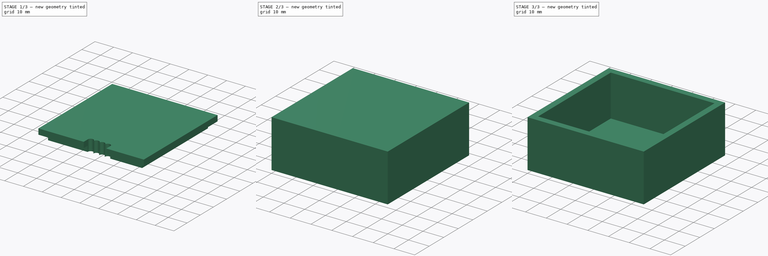
[diagram: build sequence overview — one tinted view per stage of 3, left to right]
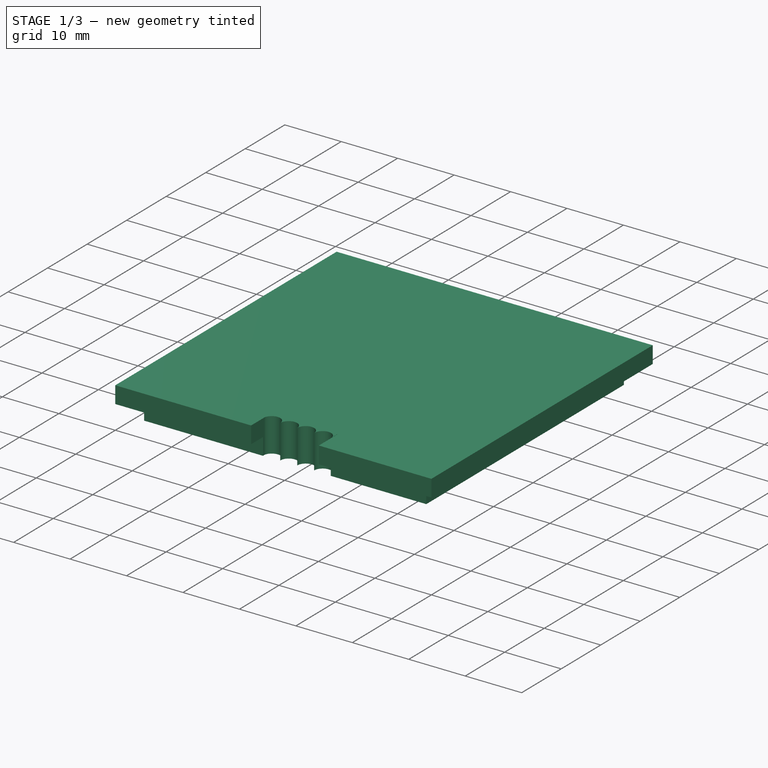
[diagram: stage 1 of 3 — iso view after this stage's code; geometry added in this stage tinted green]
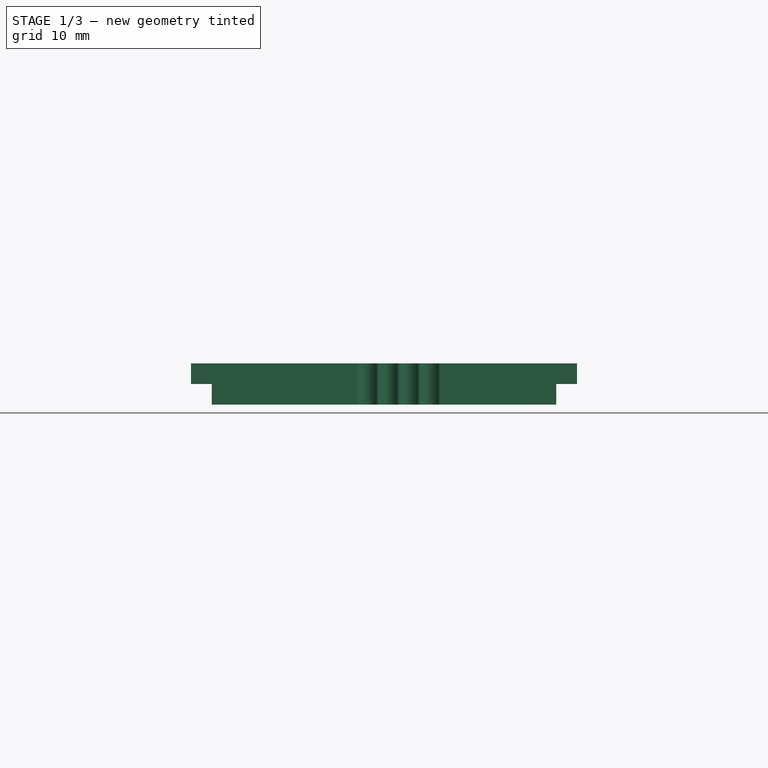
[diagram: stage 1 of 3 — front view after this stage's code; geometry added in this stage tinted green]
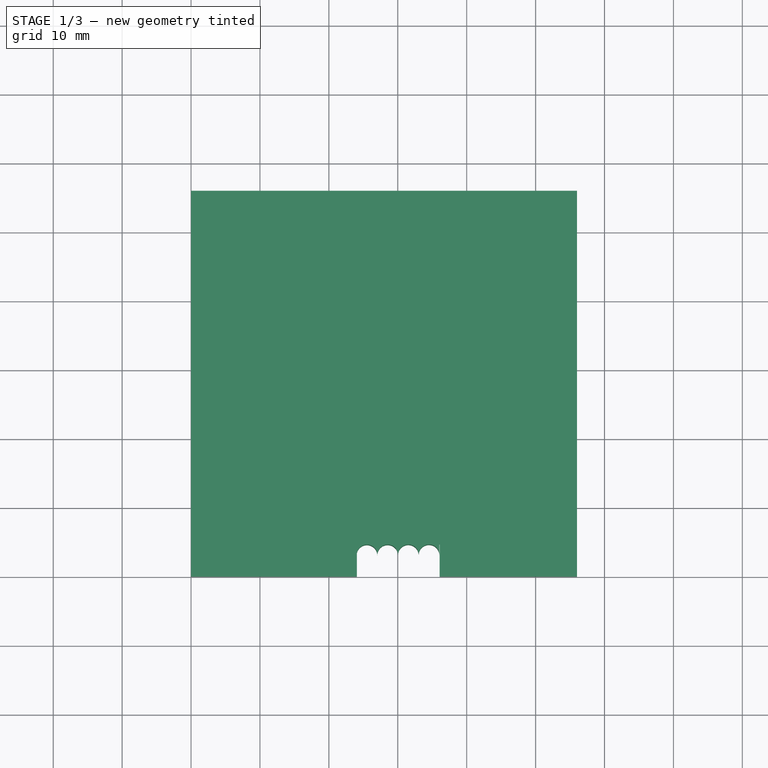
[diagram: stage 1 of 3 — top view after this stage's code; geometry added in this stage tinted green]
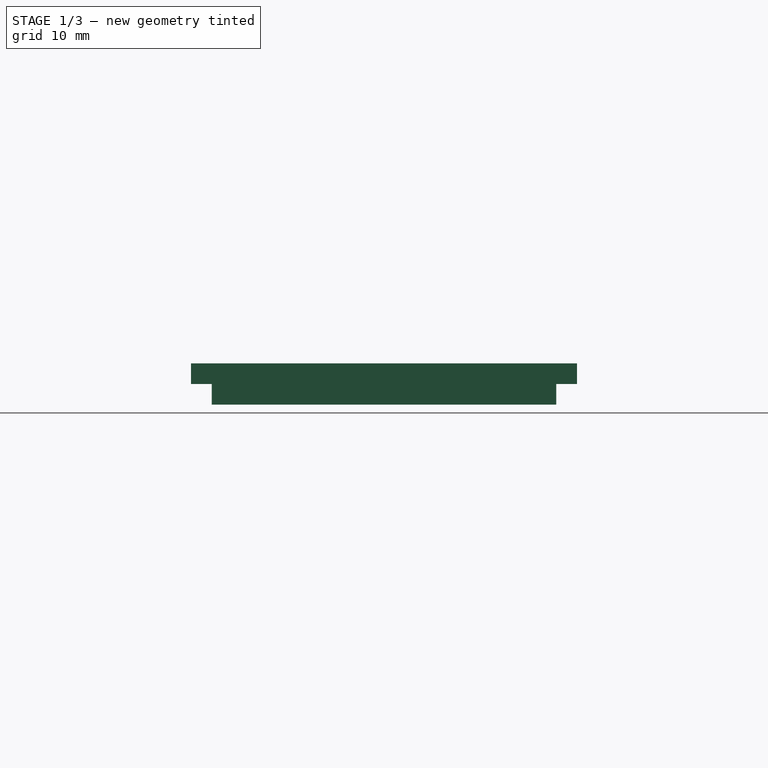
[diagram: stage 1 of 3 — right view after this stage's code; geometry added in this stage tinted green]
FCSTD DOCUMENT  (FreeCAD 0.18R13666 (Git))
Label: meteonode-box
License: All rights reserved
LicenseURL: http://en.wikipedia.org/wiki/All_rights_reserved
objects: Part::Box×4, Part::MultiFuse×3, Sketcher::SketchObject×3, Part::Extrusion×2, PartDesign::FeatureBase×1, Part::Cut×1, PartDesign::Body×1, PartDesign::Pocket×1, App::DocumentObjectGroup×1
note: 17 computed .brp shape members not serialized (recipe doc carries the construction recipe); baked Part::Feature solids carry a one-line shape summary decoded from their .brp

FEATURE [Sketcher::SketchObject] Sketch001
  sketch-geometry (7):
    g0: LineSegment StartX=24.0301 StartY=3.12567 StartZ=0 EndX=24.0301 EndY=4.81574 EndZ=0
    g1: ArcOfCircle CenterX=25.5301 CenterY=3.12745 CenterZ=0 NormalX=0 NormalY=0 NormalZ=1 AngleXU=0 Radius=1.50002 StartAngle=0.00216851 EndAngle=3.14278
    g2: LineSegment StartX=36.0301 StartY=3.15574 StartZ=0 EndX=36.0301 EndY=4.81574 EndZ=0
    g3: LineSegment StartX=36.0301 StartY=4.81574 StartZ=0 EndX=24.0301 EndY=4.81574 EndZ=0
    g4: ArcOfCircle CenterX=28.5301 CenterY=3.13516 CenterZ=0 NormalX=0 NormalY=0 NormalZ=1 AngleXU=0 Radius=1.5 StartAngle=0.00329835 EndAngle=3.14456
    g5: ArcOfCircle CenterX=31.5301 CenterY=3.14513 CenterZ=0 NormalX=0 NormalY=0 NormalZ=1 AngleXU=0 Radius=1.5 StartAngle=0.00290395 EndAngle=3.14495
    g6: ArcOfCircle CenterX=34.5301 CenterY=3.15299 CenterZ=0 NormalX=0 NormalY=0 NormalZ=1 AngleXU=0 Radius=1.5 StartAngle=0.00183633 EndAngle=3.14393
  constraints (15):
    c: Vertical(g0)
    c: Coincident(g2,g3)
    c: Horizontal(g3)
    c: Vertical(g2)
    c: Coincident(g4,g5)
    c: Coincident(g1,g4)
    c: Coincident(g5,g6)
    c: Coincident(g2,g6)
    c: Coincident(g0,g1)
    c: Coincident(g0,g3)
    c: Radius(g4) = 1.5
    c: Radius(g5) = 1.5
    c: Radius(g6) = 1.5
    c: DistanceX(g3,g3) = 12
    c: DistanceY(g2,g2) = 1.66
FEATURE [Part::Extrusion] Extrude
  Base = -> Sketch001
  Dir = (0,0,1)
  DirMode = 2
  FaceMakerClass = Part::FaceMakerBullseye
  LengthFwd = 6
  LengthRev = 0
  Placement = pos=(0,0,20) rot=(0,0,1;0rad)
  Solid = true
  Symmetric = false
FEATURE [Sketcher::SketchObject] Sketch
  MapMode = 2
  Support = -> [Body]
  sketch-geometry (4):
    g0: LineSegment StartX=24.0637 StartY=-0.055112 StartZ=0 EndX=36.0637 EndY=-0.055112 EndZ=0
    g1: LineSegment StartX=36.0637 StartY=-0.055112 StartZ=0 EndX=36.0637 EndY=4.74489 EndZ=0
    g2: LineSegment StartX=36.0637 StartY=4.74489 StartZ=0 EndX=24.0637 EndY=4.74489 EndZ=0
    g3: LineSegment StartX=24.0637 StartY=4.74489 StartZ=0 EndX=24.0637 EndY=-0.055112 EndZ=0
  constraints (10):
    c: Coincident(g0,g1)
    c: Coincident(g1,g2)
    c: Coincident(g2,g3)
    c: Coincident(g3,g0)
    c: Horizontal(g0)
    c: Horizontal(g2)
    c: Vertical(g1)
    c: Vertical(g3)
    c: DistanceX(g2,g2) = 12
    c: DistanceY(g1,g1) = 4.8
FEATURE [PartDesign::Body] Body
  BaseFeature = -> Fusion
  Group = -> [BaseFeature,Sketch,Pocket]
  Origin = -> Origin
  Tip = -> Pocket
FEATURE [PartDesign::Pocket] Pocket
  BaseFeature = -> BaseFeature
  Length = 40
  Length2 = 100
  Profile = -> Sketch
  Reversed = true
  Type = 0
FEATURE [App::DocumentObjectGroup] Group  label="GroupTapa"
  Group = -> [Fusion,Fusion001]
FEATURE [Part::MultiFuse] Fusion001  label="Fusion-Tapa-End"
  Shapes = -> [Extrude,Body]
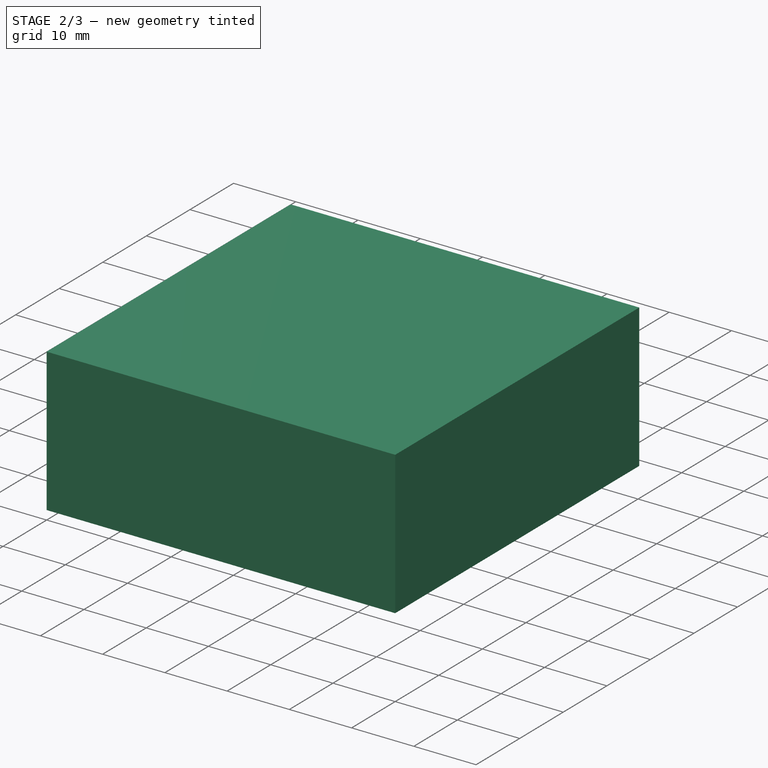
[diagram: stage 2 of 3 — iso view after this stage's code; geometry added in this stage tinted green]
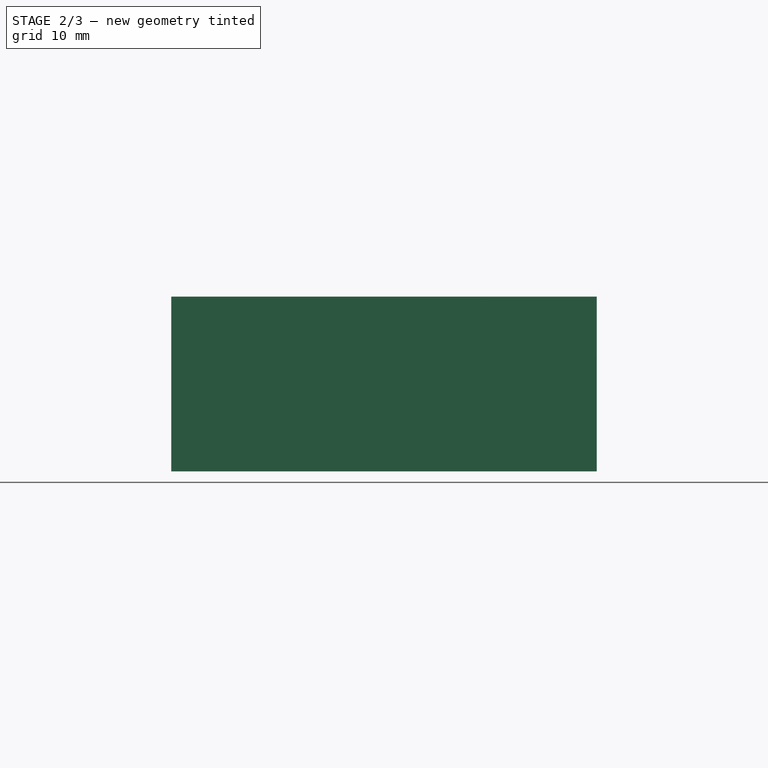
[diagram: stage 2 of 3 — front view after this stage's code; geometry added in this stage tinted green]
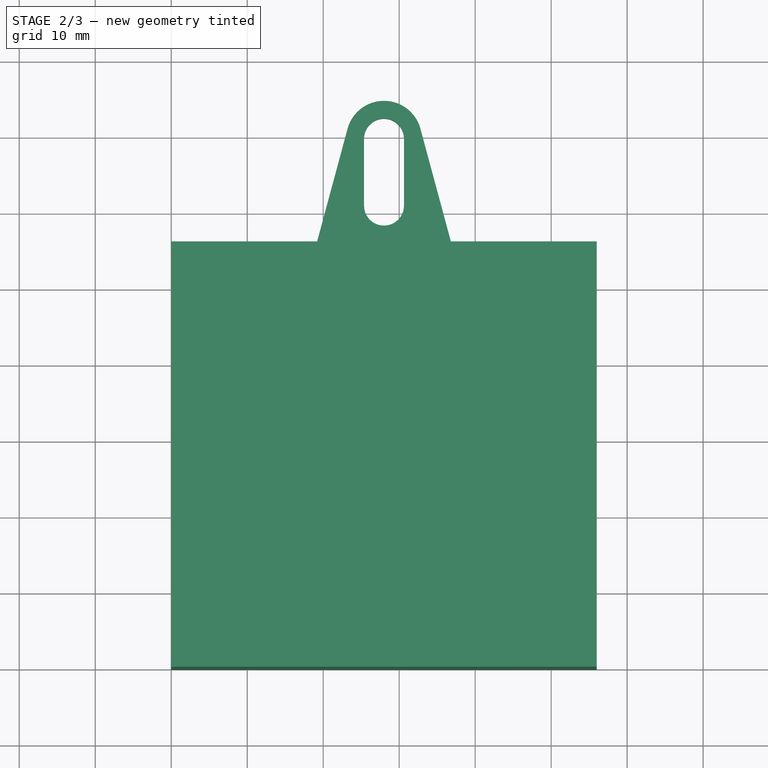
[diagram: stage 2 of 3 — top view after this stage's code; geometry added in this stage tinted green]
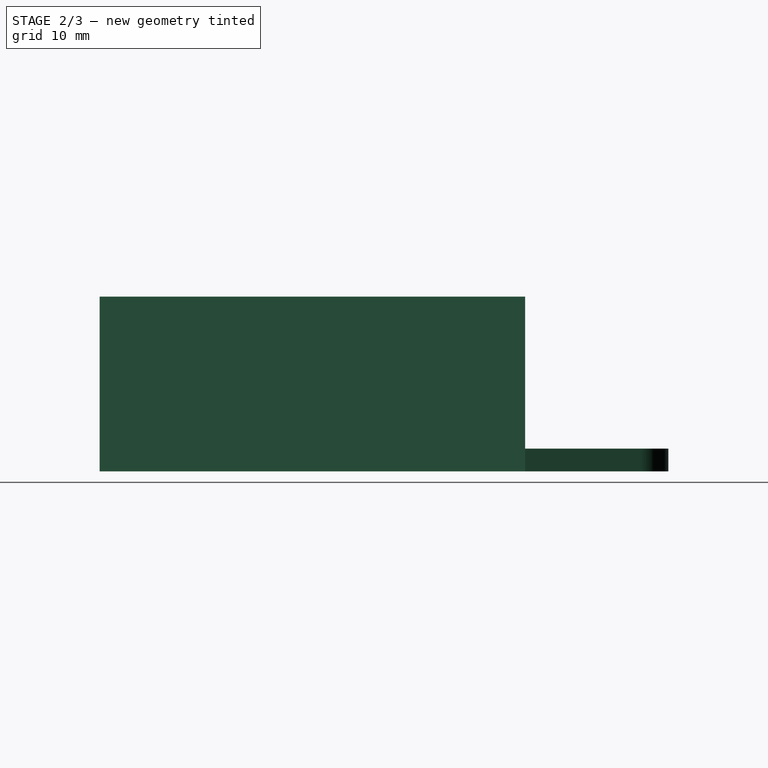
[diagram: stage 2 of 3 — right view after this stage's code; geometry added in this stage tinted green]
FEATURE [Part::Box] Box  label="Tapa"
  AttacherType = Attacher::AttachEngine3D
  Height = 3
  Length = 56
  Placement = pos=(0,0,23) rot=(0,0,1;0rad)
  Width = 56
FEATURE [Part::Box] Box001  label="Cube001"
  AttacherType = Attacher::AttachEngine3D
  Height = 20
  Length = 50
  Placement = pos=(3,3,3) rot=(0,0,1;0rad)
  Width = 50
FEATURE [Part::Box] Box002  label="Caixa"
  AttacherType = Attacher::AttachEngine3D
  Height = 23
  Length = 56
  Width = 56
FEATURE [Sketcher::SketchObject] Sketch002
  ExternalGeometry = -> [Fusion001]
  sketch-geometry (9):
    g0: LineSegment StartX=17.9814 StartY=51.8239 StartZ=0 EndX=38.0186 EndY=51.8239 EndZ=0
    g1: LineSegment StartX=38.0186 StartY=51.8239 StartZ=0 EndX=32.7959 EndY=71.1685 EndZ=0
    g2: LineSegment StartX=23.2041 StartY=71.1685 StartZ=0 EndX=17.9814 EndY=51.8239 EndZ=0
    g3: Circle [constr] CenterX=28 CenterY=56 CenterZ=0 NormalX=0 NormalY=0 NormalZ=1 AngleXU=0 Radius=10.8542
    g4: ArcOfCircle CenterX=28 CenterY=69.8737 CenterZ=0 NormalX=0 NormalY=0 NormalZ=1 AngleXU=0 Radius=4.96761 StartAngle=0.263696 EndAngle=2.8779
    g5: ArcOfCircle CenterX=28 CenterY=69.8737 CenterZ=0 NormalX=0 NormalY=0 NormalZ=1 AngleXU=0 Radius=2.62502 StartAngle=0 EndAngle=3.14159
    g6: ArcOfCircle CenterX=28 CenterY=61.0482 CenterZ=0 NormalX=0 NormalY=0 NormalZ=1 AngleXU=0 Radius=2.62502 StartAngle=3.14159 EndAngle=6.28319
    g7: LineSegment StartX=25.375 StartY=69.8737 StartZ=0 EndX=25.375 EndY=61.0482 EndZ=0
    g8: LineSegment StartX=30.625 StartY=69.8737 StartZ=0 EndX=30.625 EndY=61.0482 EndZ=0
  constraints (17):
    c: Coincident(g0,g1)
    c: Coincident(g2,g0)
    c: Equal(g0,g1)
    c: Equal(g0,g2)
    c: PointOnObject(g0,g3)
    c: PointOnObject(g2,g3)
    c: Horizontal(g0)
    c: Tangent(g2,g4) = -1.5708
    c: Tangent(g1,g4) = -1.5708
    c: Symmetric(g-3,g-3,g3)
    c: Tangent(g5,g8) = 1.5708
    c: Tangent(g5,g7) = -1.5708
    c: Tangent(g7,g6) = -1.5708
    c: Tangent(g8,g6) = 1.5708
    c: Vertical(g7)
    c: Equal(g5,g6)
    c: Coincident(g5,g4)
FEATURE [Part::Extrusion] Extrude001  label="ExtrudeSuport"
  Base = -> Sketch002
  Dir = (0,0,1)
  DirMode = 2
  FaceMakerClass = Part::FaceMakerBullseye
  LengthFwd = 3
  LengthRev = 0
  Solid = true
  Symmetric = false
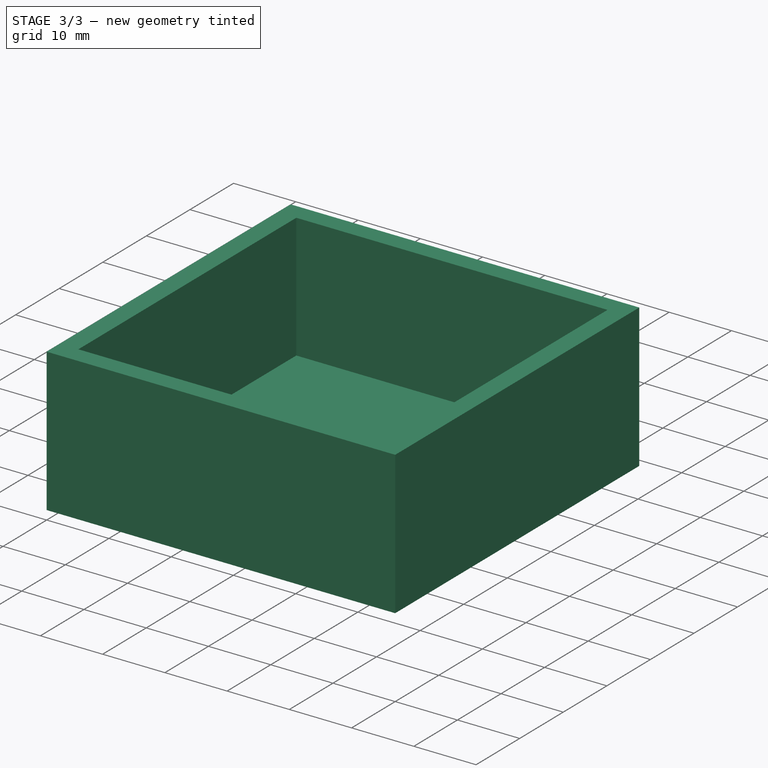
[diagram: stage 3 of 3 — iso view after this stage's code; geometry added in this stage tinted green]
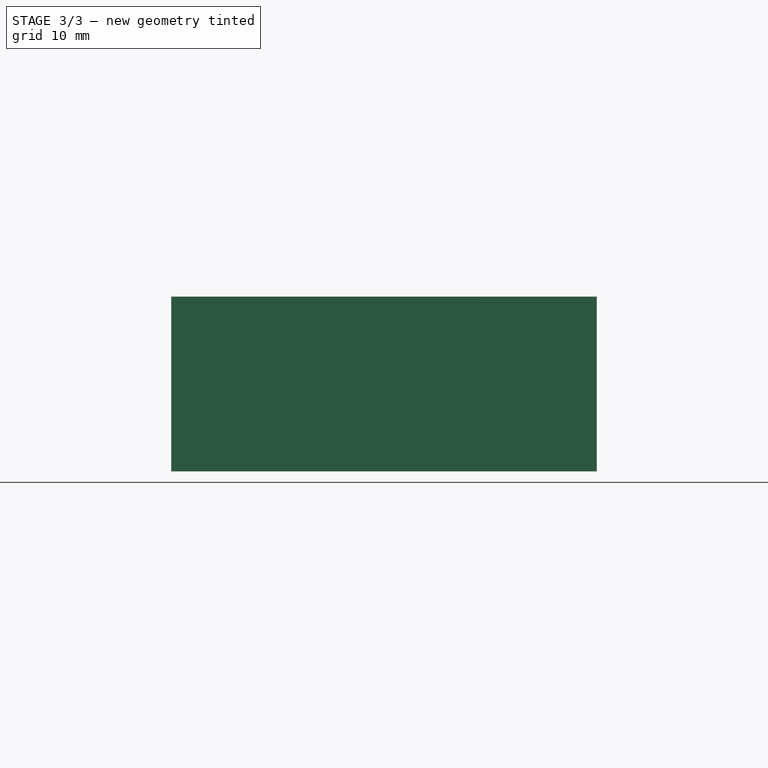
[diagram: stage 3 of 3 — front view after this stage's code; geometry added in this stage tinted green]
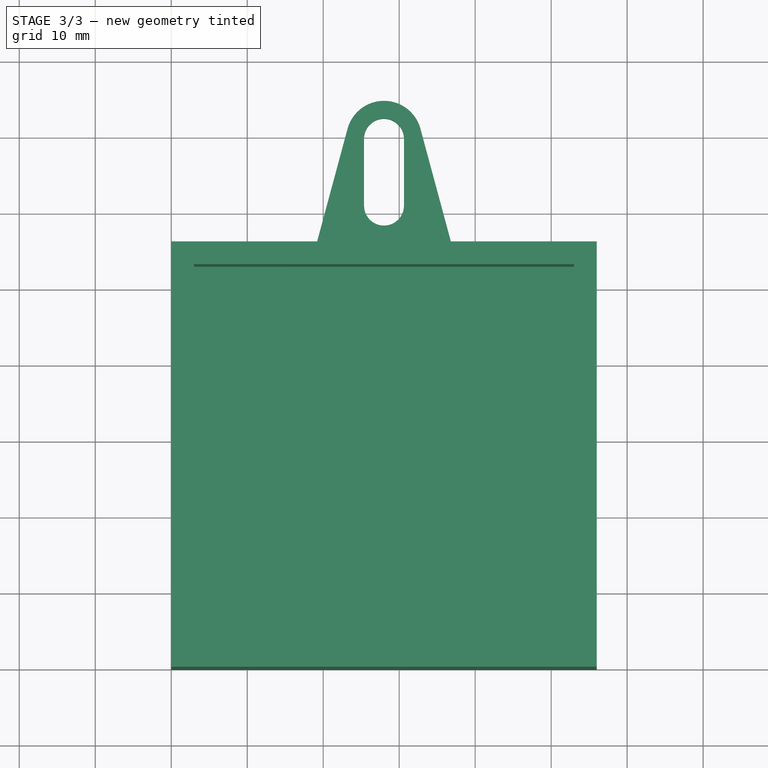
[diagram: stage 3 of 3 — top view after this stage's code; geometry added in this stage tinted green]
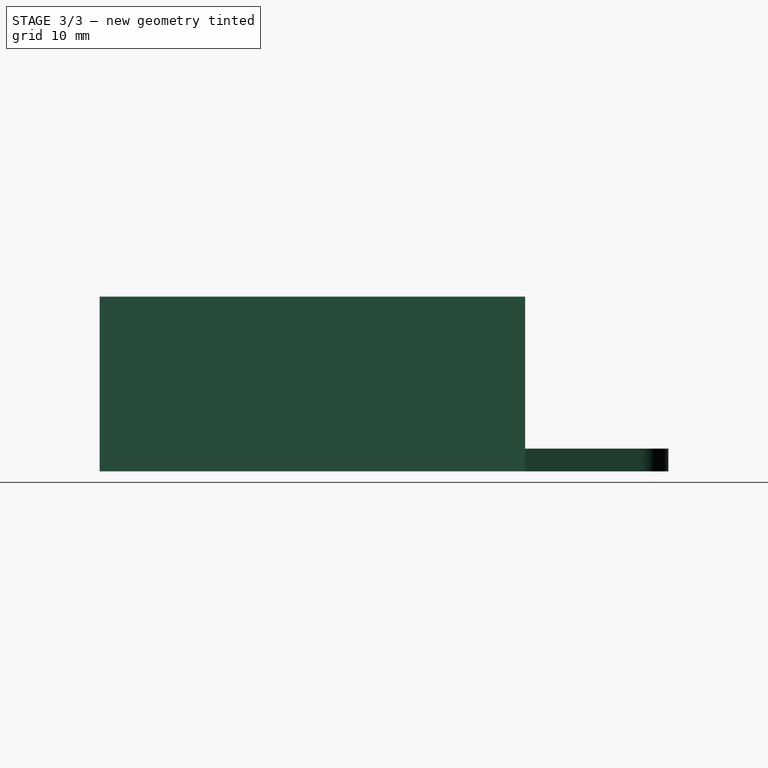
[diagram: stage 3 of 3 — right view after this stage's code; geometry added in this stage tinted green]
FEATURE [Part::Box] Box003  label="TapaCalaix"
  AttacherType = Attacher::AttachEngine3D
  Height = 3
  Length = 50
  Placement = pos=(3,3,20) rot=(0,0,1;0rad)
  Width = 50
FEATURE [Part::MultiFuse] Fusion
  Shapes = -> [Box003,Box]
FEATURE [PartDesign::FeatureBase] BaseFeature
  BaseFeature = -> Fusion
FEATURE [Part::Cut] Cut  label="Substract-Caixa"
  Base = -> Box002
  Tool = -> Box001
FEATURE [Part::MultiFuse] Fusion002  label="Fusion-Caixa-End"
  Shapes = -> [Extrude001,Cut]
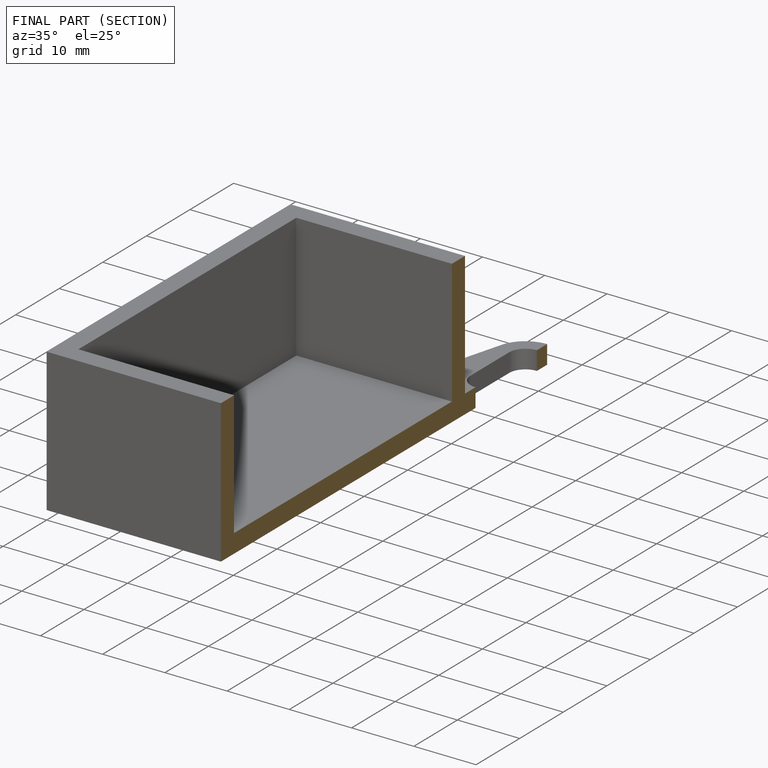
[diagram: finished part — half-section view (interior)]
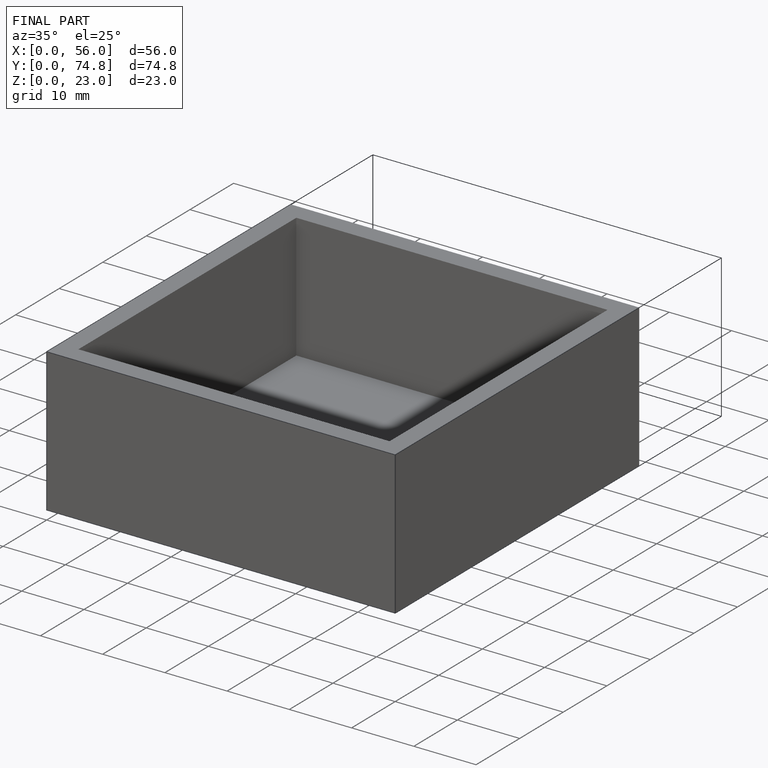
[diagram: finished part — iso view with bounding-box wireframe]
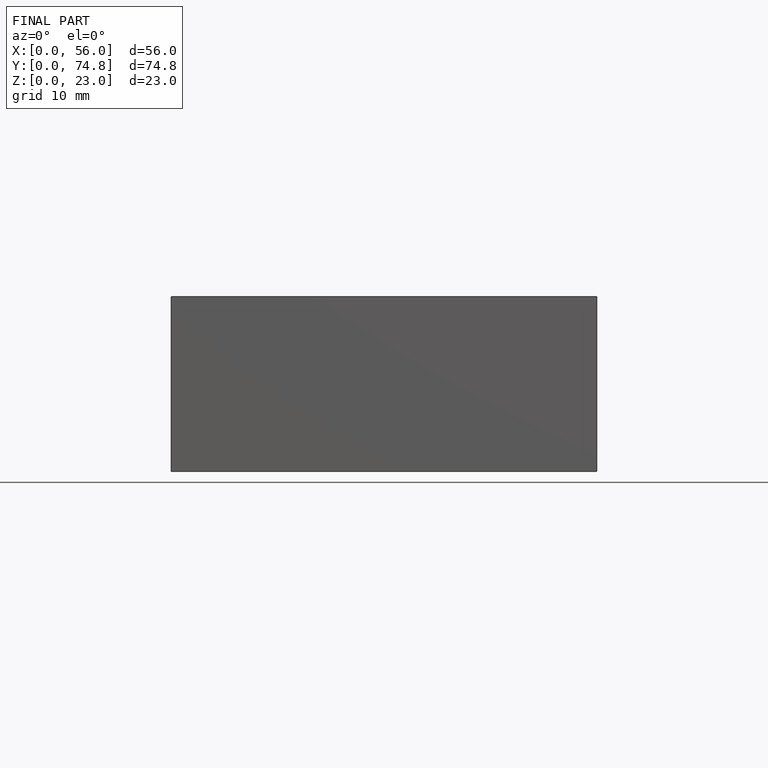
[diagram: finished part — front view with bounding-box wireframe]
